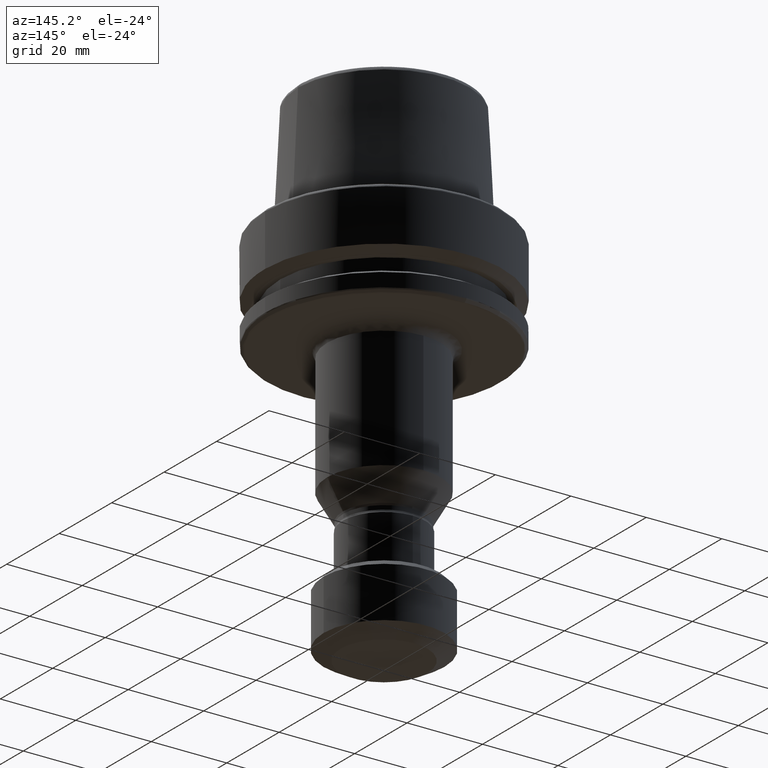
[diagram: clean part render]
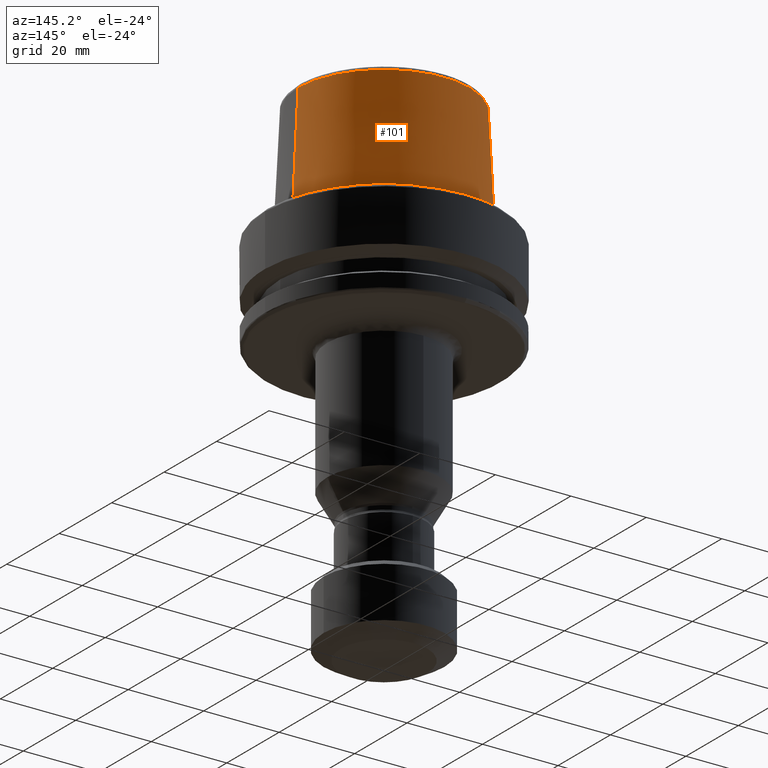
[diagram: same view with one face highlighted and labeled with its STEP entity id]
A machine part, auxiliary view. The second image highlights one B-rep face of the part: STEP entity #101.
In plain terms, the highlighted conical surface has half-angle 2.868 deg.
Its self-contained STEP definition (entity closure, byte-faithful):
#37 = CONICAL_SURFACE ( 'NONE', #3370, 22.77957961900000300, 0.05005701256328789300 ) ;
#101 = ADVANCED_FACE ( 'NONE', ( #144 ), #37, .T. ) ;
#110 = DIRECTION ( 'NONE',  ( -0.05003611050185009100, 0.0000000000000000000, -0.9987474093312315200 ) ) ;
#144 = FACE_OUTER_BOUND ( 'NONE', #229, .T. ) ;
#190 = VECTOR ( 'NONE', #110, 1000.000000000000100 ) ;
#229 = EDGE_LOOP ( 'NONE', ( #1815, #3733, #3998, #1820 ) ) ;
#370 = CARTESIAN_POINT ( 'NONE',  ( 0.0000000000000000000, 0.0000000000000000000, 30.76004333299997700 ) ) ;
#402 = AXIS2_PLACEMENT_3D ( 'NONE', #1617, #3870, #1951 ) ;
#498 = CARTESIAN_POINT ( 'NONE',  ( 0.0000000000000000000, 0.0000000000000000000, 30.76004333299999500 ) ) ;
#617 = CARTESIAN_POINT ( 'NONE',  ( 24.17032625100000200, 2.960011267763439600E-015, 3.000000000000002700 ) ) ;
#712 = DIRECTION ( 'NONE',  ( -1.000000000000000000, 8.881784197001252300E-016, 9.138308107476618100E-016 ) ) ;
#860 = VERTEX_POINT ( 'NONE', #4052 ) ;
#1071 = CARTESIAN_POINT ( 'NONE',  ( -24.17032625100000200, 0.0000000000000000000, 3.000000000000002700 ) ) ;
#1166 = VERTEX_POINT ( 'NONE', #1294 ) ;
#1294 = CARTESIAN_POINT ( 'NONE',  ( -22.77957961860916200, -8.181844432284903700E-010, 30.76004333281712300 ) ) ;
#1354 = DIRECTION ( 'NONE',  ( 0.05003611050185009100, 6.127656256787398800E-018, -0.9987474093312315200 ) ) ;
#1389 = CIRCLE ( 'NONE', #3526, 22.77957961900000300 ) ;
#1487 = DIRECTION ( 'NONE',  ( 0.0000000000000000000, 0.0000000000000000000, -1.000000000000000000 ) ) ;
#1617 = CARTESIAN_POINT ( 'NONE',  ( 0.0000000000000000000, 0.0000000000000000000, 3.000000000000002700 ) ) ;
#1815 = ORIENTED_EDGE ( 'NONE', *, *, #3888, .F. ) ;
#1820 = ORIENTED_EDGE ( 'NONE', *, *, #2479, .F. ) ;
#1951 = DIRECTION ( 'NONE',  ( 1.000000000000000000, 0.0000000000000000000, -1.076561891198119100E-016 ) ) ;
#2169 = EDGE_CURVE ( 'NONE', #3722, #2308, #3376, .T. ) ;
#2308 = VERTEX_POINT ( 'NONE', #1071 ) ;
#2376 = CARTESIAN_POINT ( 'NONE',  ( -22.77957961900000300, 0.0000000000000000000, 30.76004333299999500 ) ) ;
#2479 = EDGE_CURVE ( 'NONE', #1166, #2308, #3531, .T. ) ;
#2631 = DIRECTION ( 'NONE',  ( -0.0000000000000000000, -0.0000000000000000000, 1.000000000000000000 ) ) ;
#3115 = LINE ( 'NONE', #3286, #3751 ) ;
#3286 = CARTESIAN_POINT ( 'NONE',  ( 22.77957961900000300, 2.789693926633063400E-015, 30.76004333299999500 ) ) ;
#3370 = AXIS2_PLACEMENT_3D ( 'NONE', #498, #1487, #3444 ) ;
#3376 = CIRCLE ( 'NONE', #402, 24.17032625100000200 ) ;
#3444 = DIRECTION ( 'NONE',  ( -1.000000000000000000, 0.0000000000000000000, 0.0000000000000000000 ) ) ;
#3526 = AXIS2_PLACEMENT_3D ( 'NONE', #370, #2631, #712 ) ;
#3531 = LINE ( 'NONE', #2376, #190 ) ;
#3722 = VERTEX_POINT ( 'NONE', #617 ) ;
#3733 = ORIENTED_EDGE ( 'NONE', *, *, #3858, .T. ) ;
#3751 = VECTOR ( 'NONE', #1354, 1000.000000000000100 ) ;
#3858 = EDGE_CURVE ( 'NONE', #860, #3722, #3115, .T. ) ;
#3870 = DIRECTION ( 'NONE',  ( 0.0000000000000000000, 0.0000000000000000000, 1.000000000000000000 ) ) ;
#3888 = EDGE_CURVE ( 'NONE', #860, #1166, #1389, .T. ) ;
#3998 = ORIENTED_EDGE ( 'NONE', *, *, #2169, .T. ) ;
#4052 = CARTESIAN_POINT ( 'NONE',  ( 22.77957961860916200, -5.606603855993833900E-009, 30.76004333281712300 ) ) ;